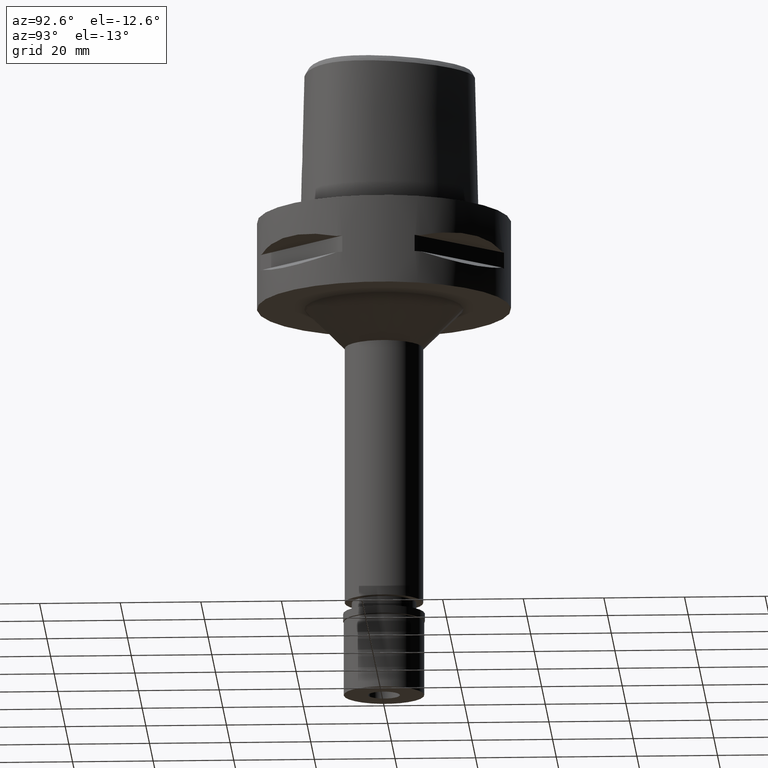
[diagram: clean part render]
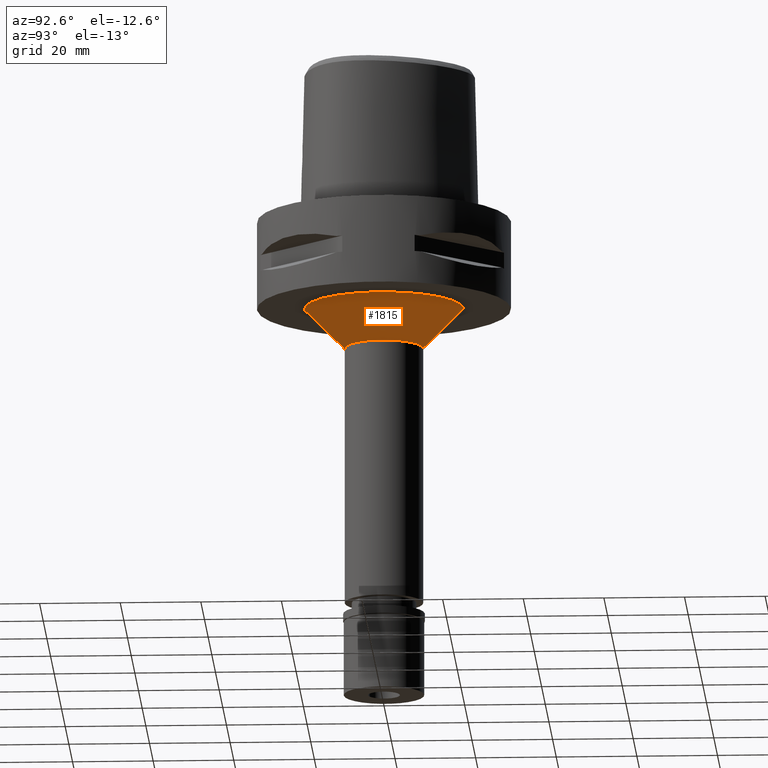
[diagram: same view with one face highlighted and labeled with its STEP entity id]
A machine part, auxiliary view. The second image highlights one B-rep face of the part: STEP entity #1815.
In plain terms, the highlighted conical surface has half-angle 45 deg.
Its self-contained STEP definition (entity closure, byte-faithful):
#106 = VERTEX_POINT ( 'NONE', #2824 ) ;
#273 = CARTESIAN_POINT ( 'NONE',  ( 0.0000000000000000000, -19.75000000000000000, -22.00000000000000000 ) ) ;
#276 = VECTOR ( 'NONE', #922, 1000.000000000000114 ) ;
#352 = CARTESIAN_POINT ( 'NONE',  ( 0.0000000000000000000, 0.0000000000000000000, -22.00000000000000000 ) ) ;
#453 = EDGE_CURVE ( 'NONE', #106, #4712, #2455, .T. ) ;
#616 = VECTOR ( 'NONE', #3838, 1000.000000000000114 ) ;
#659 = AXIS2_PLACEMENT_3D ( 'NONE', #3226, #2816, #4782 ) ;
#922 = DIRECTION ( 'NONE',  ( 0.0000000000000000000, 0.7071067811865474617, -0.7071067811865474617 ) ) ;
#1135 = ORIENTED_EDGE ( 'NONE', *, *, #5013, .F. ) ;
#1485 = CARTESIAN_POINT ( 'NONE',  ( 0.0000000000000000000, 0.0000000000000000000, -27.00000000000000000 ) ) ;
#1687 = VERTEX_POINT ( 'NONE', #4419 ) ;
#1815 = ADVANCED_FACE ( 'NONE', ( #3447 ), #2991, .T. ) ;
#1915 = AXIS2_PLACEMENT_3D ( 'NONE', #1485, #2162, #3807 ) ;
#2162 = DIRECTION ( 'NONE',  ( 0.0000000000000000000, 0.0000000000000000000, 1.000000000000000000 ) ) ;
#2455 = CIRCLE ( 'NONE', #4025, 19.75000000000000000 ) ;
#2472 = ORIENTED_EDGE ( 'NONE', *, *, #453, .T. ) ;
#2775 = DIRECTION ( 'NONE',  ( 0.0000000000000000000, 0.0000000000000000000, -1.000000000000000000 ) ) ;
#2799 = CARTESIAN_POINT ( 'NONE',  ( 0.0000000000000000000, -19.75000000000000000, -22.00000000000000000 ) ) ;
#2816 = DIRECTION ( 'NONE',  ( 0.0000000000000000000, 0.0000000000000000000, -1.000000000000000000 ) ) ;
#2824 = CARTESIAN_POINT ( 'NONE',  ( 0.0000000000000000000, 19.75000000000000000, -22.00000000000000000 ) ) ;
#2852 = LINE ( 'NONE', #2799, #276 ) ;
#2921 = EDGE_CURVE ( 'NONE', #4712, #5001, #2852, .T. ) ;
#2991 = CONICAL_SURFACE ( 'NONE', #1915, 14.75000000000000000, 0.7853981633972997312 ) ;
#3078 = CARTESIAN_POINT ( 'NONE',  ( 0.0000000000000000000, -9.750000000000000000, -32.00000000000000000 ) ) ;
#3226 = CARTESIAN_POINT ( 'NONE',  ( 0.0000000000000000000, 0.0000000000000000000, -32.00000000000000000 ) ) ;
#3447 = FACE_OUTER_BOUND ( 'NONE', #4950, .T. ) ;
#3454 = LINE ( 'NONE', #4274, #616 ) ;
#3459 = EDGE_CURVE ( 'NONE', #106, #1687, #3454, .T. ) ;
#3495 = DIRECTION ( 'NONE',  ( 0.0000000000000000000, 1.000000000000000000, 0.0000000000000000000 ) ) ;
#3784 = CIRCLE ( 'NONE', #659, 9.750000000000000000 ) ;
#3807 = DIRECTION ( 'NONE',  ( 0.0000000000000000000, 1.000000000000000000, 0.0000000000000000000 ) ) ;
#3838 = DIRECTION ( 'NONE',  ( 0.0000000000000000000, -0.7071067811865474617, -0.7071067811865474617 ) ) ;
#3961 = ORIENTED_EDGE ( 'NONE', *, *, #2921, .T. ) ;
#4025 = AXIS2_PLACEMENT_3D ( 'NONE', #352, #2775, #3495 ) ;
#4274 = CARTESIAN_POINT ( 'NONE',  ( 0.0000000000000000000, 19.75000000000000000, -22.00000000000000000 ) ) ;
#4419 = CARTESIAN_POINT ( 'NONE',  ( 0.0000000000000000000, 9.750000000000000000, -32.00000000000000000 ) ) ;
#4712 = VERTEX_POINT ( 'NONE', #273 ) ;
#4782 = DIRECTION ( 'NONE',  ( 0.0000000000000000000, 1.000000000000000000, 0.0000000000000000000 ) ) ;
#4829 = ORIENTED_EDGE ( 'NONE', *, *, #3459, .F. ) ;
#4950 = EDGE_LOOP ( 'NONE', ( #2472, #3961, #1135, #4829 ) ) ;
#5001 = VERTEX_POINT ( 'NONE', #3078 ) ;
#5013 = EDGE_CURVE ( 'NONE', #1687, #5001, #3784, .T. ) ;